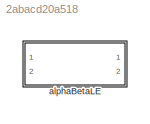
MODEL slx_2abacd20a518
KIND library
CONFIG AbsTol = auto
CONFIG EnableMultiTasking = off
CONFIG FixedStep = auto
CONFIG MaxStep = auto
CONFIG MinStep = auto
CONFIG RelTol = 1e-3
CONFIG SampleTimeConstraint = Unconstrained
CONFIG Solver = VariableStepAuto
CONFIG SolverName = VariableStepAuto
CONFIG StartTime = 0.0
CONFIG StopTime = 10.0
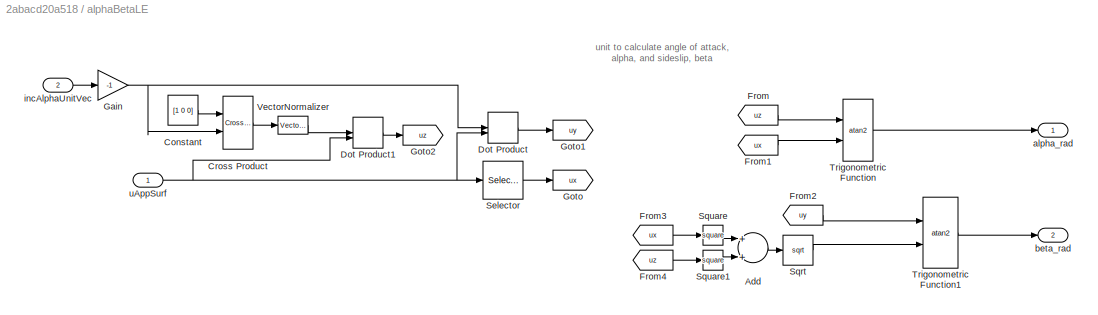
BLOCK [SubSystem] alphaBetaLE
  MinAlgLoopOccurrences = on
  Ports = [2, 2]
  RequestExecContextInheritance = off
  TreatAsAtomicUnit = on
BLOCK [Sum] alphaBetaLE/Add
  InputSameDT = off
  OutDataTypeStr = Inherit: Inherit via internal rule
  Ports = [2, 1]
  SaturateOnIntegerOverflow = off
BLOCK [Constant] alphaBetaLE/Constant
  Value = [1 0 0]
BLOCK [Reference] alphaBetaLE/Cross Product  REF=vrlib/Utilities/Cross Product
  Ports = [2, 1]
  SourceBlock = vrlib/Utilities/Cross Product
  SourceProductBaseCode = VR
  SourceProductName = Simulink 3D Animation
  SourceType = Cross Product
BLOCK [DotProduct] alphaBetaLE/Dot Product
  OutDataTypeStr = Inherit: Inherit via internal rule
BLOCK [DotProduct] alphaBetaLE/Dot Product1
  OutDataTypeStr = Inherit: Inherit via internal rule
BLOCK [From] alphaBetaLE/From
  GotoTag = uz
BLOCK [From] alphaBetaLE/From1
  GotoTag = ux
BLOCK [From] alphaBetaLE/From2
  GotoTag = uy
BLOCK [From] alphaBetaLE/From3
  GotoTag = ux
BLOCK [From] alphaBetaLE/From4
  GotoTag = uz
BLOCK [Gain] alphaBetaLE/Gain
  Gain = -1
  OutDataTypeStr = Inherit: Inherit via internal rule
  ParamDataTypeStr = Inherit: Inherit via internal rule
  SaturateOnIntegerOverflow = off
BLOCK [Goto] alphaBetaLE/Goto
  GotoTag = ux
BLOCK [Goto] alphaBetaLE/Goto1
  GotoTag = uy
BLOCK [Goto] alphaBetaLE/Goto2
  GotoTag = uz
BLOCK [Selector] alphaBetaLE/Selector
  IndexOptions = Index vector (dialog)
  Indices = 1
  InputPortWidth = 3
  OutputSizes = 1
  Ports = [1, 1]
BLOCK [Sqrt] alphaBetaLE/Sqrt
BLOCK [Math] alphaBetaLE/Square
  Operator = square
  Ports = [1, 1]
BLOCK [Math] alphaBetaLE/Square1
  Operator = square
  Ports = [1, 1]
BLOCK [Trigonometry] alphaBetaLE/Trigonometric Function
  Operator = atan2
  Ports = [2, 1]
BLOCK [Trigonometry] alphaBetaLE/Trigonometric Function1
  Operator = atan2
  Ports = [2, 1]
BLOCK [Reference] alphaBetaLE/VectorNormalizer   REF=vectorNormalizer_ul/VectorNormalizer

  Ports = [1, 1]
  SourceBlock = vectorNormalizer_ul/VectorNormalizer
  SourceType = SubSystem
BLOCK [Outport] alphaBetaLE/alpha_rad
  IconDisplay = Port number
BLOCK [Outport] alphaBetaLE/beta_rad
  IconDisplay = Port number
  Port = 2
BLOCK [Inport] alphaBetaLE/incAlphaUnitVec
  IconDisplay = Port number
  Port = 2
BLOCK [Inport] alphaBetaLE/uAppSurf
  IconDisplay = Port number
ANNOTATION alphaBetaLE: unit to calculate angle of attack, alpha, and sideslip, beta
LINE alphaBetaLE/Add:1 -> alphaBetaLE/Sqrt:1
LINE alphaBetaLE/Constant:1 -> alphaBetaLE/Cross Product:1
LINE alphaBetaLE/Cross Product:1 -> alphaBetaLE/VectorNormalizer :1
LINE alphaBetaLE/Dot Product1:1 -> alphaBetaLE/Goto2:1
LINE alphaBetaLE/Dot Product:1 -> alphaBetaLE/Goto1:1
LINE alphaBetaLE/From1:1 -> alphaBetaLE/Trigonometric Function:2
LINE alphaBetaLE/From2:1 -> alphaBetaLE/Trigonometric Function1:1
LINE alphaBetaLE/From3:1 -> alphaBetaLE/Square:1
LINE alphaBetaLE/From4:1 -> alphaBetaLE/Square1:1
LINE alphaBetaLE/From:1 -> alphaBetaLE/Trigonometric Function:1
NET alphaBetaLE/Gain:1 -> alphaBetaLE/Cross Product:2, alphaBetaLE/Dot Product:1
LINE alphaBetaLE/Selector:1 -> alphaBetaLE/Goto:1
LINE alphaBetaLE/Sqrt:1 -> alphaBetaLE/Trigonometric Function1:2
LINE alphaBetaLE/Square1:1 -> alphaBetaLE/Add:2
LINE alphaBetaLE/Square:1 -> alphaBetaLE/Add:1
LINE alphaBetaLE/Trigonometric Function1:1 -> alphaBetaLE/beta_rad:1
LINE alphaBetaLE/Trigonometric Function:1 -> alphaBetaLE/alpha_rad:1
LINE alphaBetaLE/VectorNormalizer :1 -> alphaBetaLE/Dot Product1:1
LINE alphaBetaLE/incAlphaUnitVec:1 -> alphaBetaLE/Gain:1
NET alphaBetaLE/uAppSurf:1 -> alphaBetaLE/Dot Product1:2, alphaBetaLE/Dot Product:2, alphaBetaLE/Selector:1
note: NET lines group one-source signal fan-out (src -> all destinations, sorted); 1:1 wires keep LINE
